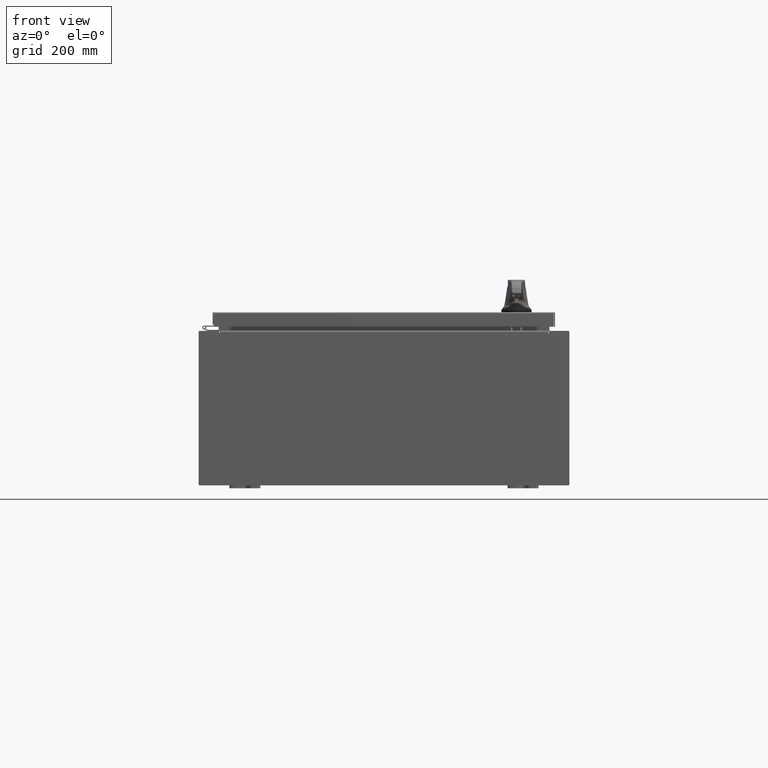
[diagram: clean part render]
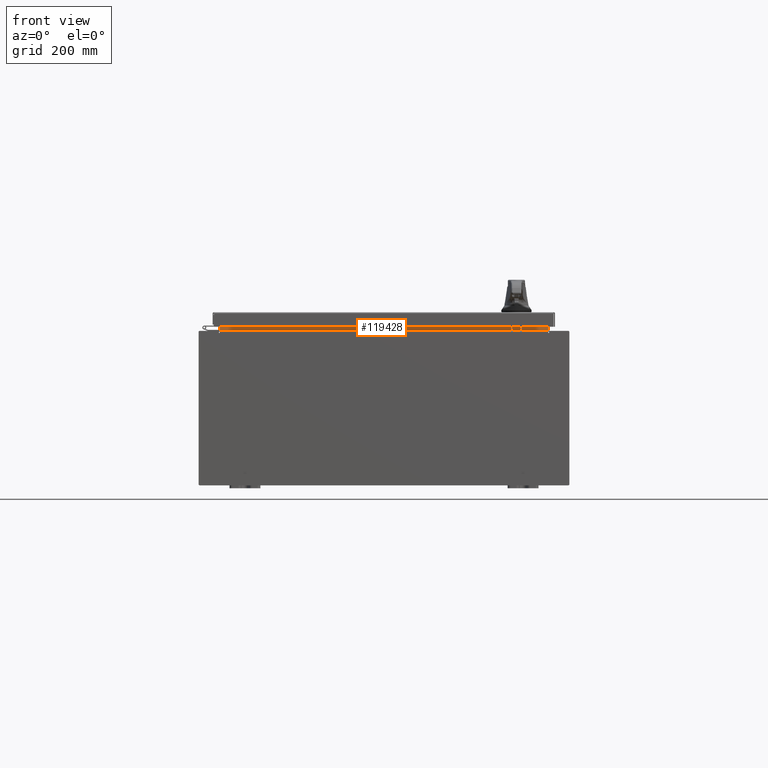
[diagram: same view with one face highlighted and labeled with its STEP entity id]
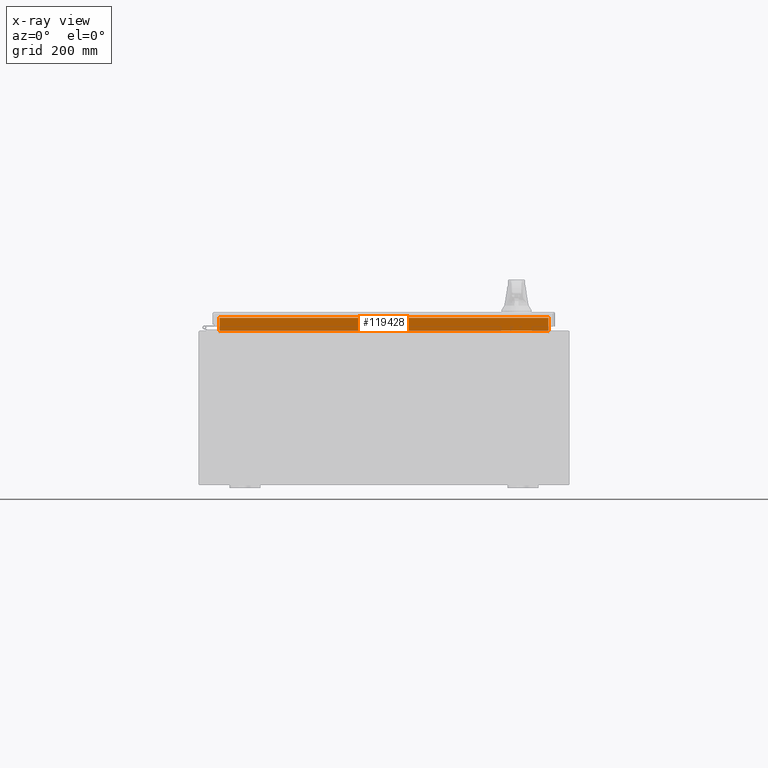
[diagram: x-ray of the same camera — body ghosted, the highlighted face saturated]
A machine part, front view. The second image highlights one B-rep face of the part: STEP entity #119428.
The next image is the same camera in x-ray: the body ghosted, the highlighted face saturated — about 0% of this face is hidden behind the body in this view.
In plain terms, the highlighted planar face has unit normal (0, -1, 0).
Its self-contained STEP definition (entity closure, byte-faithful):
#2754 = LINE ( 'NONE', #66977, #75809 ) ;
#7660 = CARTESIAN_POINT ( 'NONE',  ( -10.63720000000000400, -1.300299999999999800, 5.013000000000003500 ) ) ;
#10088 = CARTESIAN_POINT ( 'NONE',  ( -10.63720000000000200, -1.300299999999999800, 5.013000000000003500 ) ) ;
#12570 = VERTEX_POINT ( 'NONE', #62202 ) ;
#14292 = PLANE ( 'NONE',  #17638 ) ;
#16027 = VECTOR ( 'NONE', #104272, 39.37007874015748100 ) ;
#17638 = AXIS2_PLACEMENT_3D ( 'NONE', #52705, #100507, #43489 ) ;
#19585 = CARTESIAN_POINT ( 'NONE',  ( -10.63720000000000200, -1.300299999999999800, 5.837600000000004600 ) ) ;
#23615 = DIRECTION ( 'NONE',  ( -0.0000000000000000000, -0.0000000000000000000, -1.000000000000000000 ) ) ;
#26008 = ORIENTED_EDGE ( 'NONE', *, *, #71432, .F. ) ;
#29645 = EDGE_LOOP ( 'NONE', ( #72728, #41269, #26008, #105312 ) ) ;
#36559 = VECTOR ( 'NONE', #88971, 39.37007874015748100 ) ;
#41269 = ORIENTED_EDGE ( 'NONE', *, *, #86035, .F. ) ;
#43489 = DIRECTION ( 'NONE',  ( 0.0000000000000000000, -0.0000000000000000000, 1.000000000000000000 ) ) ;
#49238 = EDGE_CURVE ( 'NONE', #111438, #72123, #103607, .T. ) ;
#52705 = CARTESIAN_POINT ( 'NONE',  ( 0.0000000000000000000, -1.300299999999999800, 0.0000000000000000000 ) ) ;
#53031 = VECTOR ( 'NONE', #23615, 39.37007874015748100 ) ;
#62202 = CARTESIAN_POINT ( 'NONE',  ( 10.63720000000000200, -1.300299999999999800, 5.837600000000004600 ) ) ;
#66977 = CARTESIAN_POINT ( 'NONE',  ( 10.63720000000000200, -1.300299999999999800, 5.925300000000004500 ) ) ;
#71432 = EDGE_CURVE ( 'NONE', #101643, #12570, #2754, .T. ) ;
#72123 = VERTEX_POINT ( 'NONE', #7660 ) ;
#72346 = EDGE_CURVE ( 'NONE', #72123, #101643, #89063, .T. ) ;
#72728 = ORIENTED_EDGE ( 'NONE', *, *, #49238, .F. ) ;
#75809 = VECTOR ( 'NONE', #85694, 39.37007874015748100 ) ;
#79415 = CARTESIAN_POINT ( 'NONE',  ( 10.63720000000000200, -1.300299999999999800, 5.837600000000004600 ) ) ;
#80681 = CARTESIAN_POINT ( 'NONE',  ( -10.63720000000000200, -1.300299999999999800, 5.000000000000004400 ) ) ;
#85694 = DIRECTION ( 'NONE',  ( -0.0000000000000000000, -0.0000000000000000000, 1.000000000000000000 ) ) ;
#86035 = EDGE_CURVE ( 'NONE', #12570, #111438, #112496, .T. ) ;
#88971 = DIRECTION ( 'NONE',  ( -1.000000000000000000, -0.0000000000000000000, -0.0000000000000000000 ) ) ;
#89063 = LINE ( 'NONE', #10088, #16027 ) ;
#94290 = FACE_OUTER_BOUND ( 'NONE', #29645, .T. ) ;
#100507 = DIRECTION ( 'NONE',  ( 0.0000000000000000000, 1.000000000000000000, 0.0000000000000000000 ) ) ;
#101643 = VERTEX_POINT ( 'NONE', #116348 ) ;
#103607 = LINE ( 'NONE', #80681, #53031 ) ;
#104272 = DIRECTION ( 'NONE',  ( 1.000000000000000000, 0.0000000000000000000, 0.0000000000000000000 ) ) ;
#105312 = ORIENTED_EDGE ( 'NONE', *, *, #72346, .F. ) ;
#111438 = VERTEX_POINT ( 'NONE', #19585 ) ;
#112496 = LINE ( 'NONE', #79415, #36559 ) ;
#116348 = CARTESIAN_POINT ( 'NONE',  ( 10.63720000000000400, -1.300299999999999800, 5.013000000000003500 ) ) ;
#119428 = ADVANCED_FACE ( 'NONE', ( #94290 ), #14292, .T. ) ;